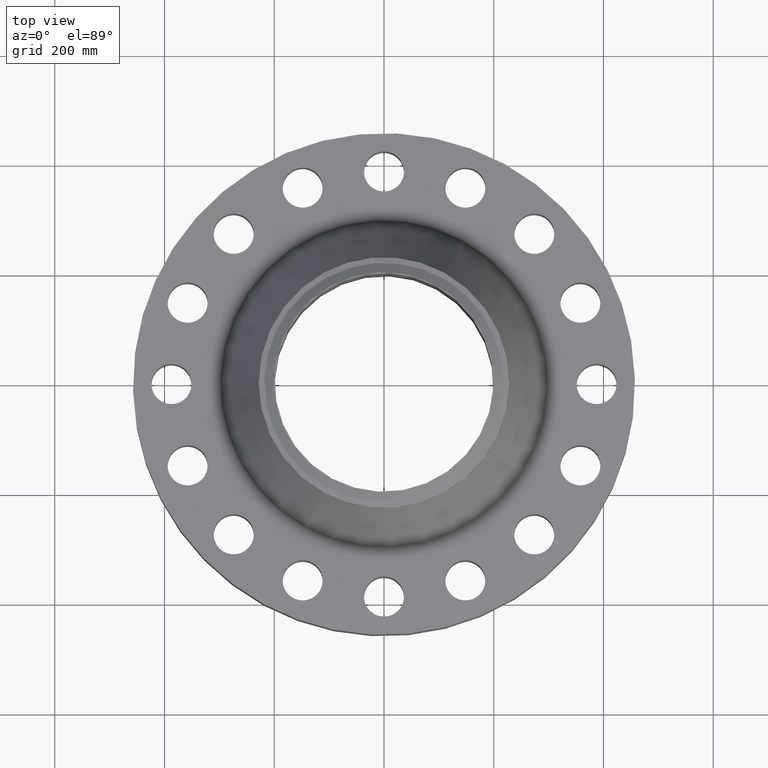
[diagram: clean part render]
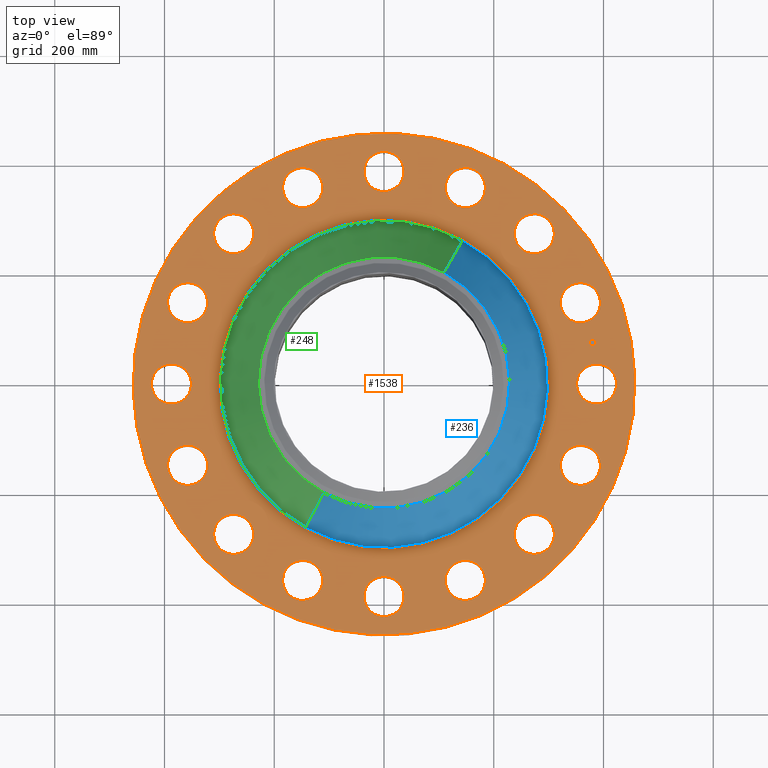
[diagram: same view with three faces highlighted in distinct colors, each labeled with its STEP entity id]
A machine part, top view with three faces highlighted in distinct colors.
Their STEP definitions:

[orange] entity #1538 — the highlighted planar face has unit normal (0, 0, -1).
#65=AXIS2_PLACEMENT_3D('Circle Axis2P3D',#63,#64,$) ;
#82=AXIS2_PLACEMENT_3D('Circle Axis2P3D',#80,#81,$) ;
#115=AXIS2_PLACEMENT_3D('Circle Axis2P3D',#113,#114,$) ;
#139=AXIS2_PLACEMENT_3D('Circle Axis2P3D',#137,#138,$) ;
#156=AXIS2_PLACEMENT_3D('Circle Axis2P3D',#154,#155,$) ;
#191=AXIS2_PLACEMENT_3D('Circle Axis2P3D',#189,#190,$) ;
#819=AXIS2_PLACEMENT_3D('Circle Axis2P3D',#817,#818,$) ;
#831=AXIS2_PLACEMENT_3D('Circle Axis2P3D',#829,#830,$) ;
#862=AXIS2_PLACEMENT_3D('Circle Axis2P3D',#860,#861,$) ;
#874=AXIS2_PLACEMENT_3D('Circle Axis2P3D',#872,#873,$) ;
#905=AXIS2_PLACEMENT_3D('Circle Axis2P3D',#903,#904,$) ;
#917=AXIS2_PLACEMENT_3D('Circle Axis2P3D',#915,#916,$) ;
#948=AXIS2_PLACEMENT_3D('Circle Axis2P3D',#946,#947,$) ;
#960=AXIS2_PLACEMENT_3D('Circle Axis2P3D',#958,#959,$) ;
#991=AXIS2_PLACEMENT_3D('Circle Axis2P3D',#989,#990,$) ;
#1003=AXIS2_PLACEMENT_3D('Circle Axis2P3D',#1001,#1002,$) ;
#1034=AXIS2_PLACEMENT_3D('Circle Axis2P3D',#1032,#1033,$) ;
#1046=AXIS2_PLACEMENT_3D('Circle Axis2P3D',#1044,#1045,$) ;
#1077=AXIS2_PLACEMENT_3D('Circle Axis2P3D',#1075,#1076,$) ;
#1089=AXIS2_PLACEMENT_3D('Circle Axis2P3D',#1087,#1088,$) ;
#1120=AXIS2_PLACEMENT_3D('Circle Axis2P3D',#1118,#1119,$) ;
#1132=AXIS2_PLACEMENT_3D('Circle Axis2P3D',#1130,#1131,$) ;
#1163=AXIS2_PLACEMENT_3D('Circle Axis2P3D',#1161,#1162,$) ;
#1175=AXIS2_PLACEMENT_3D('Circle Axis2P3D',#1173,#1174,$) ;
#1206=AXIS2_PLACEMENT_3D('Circle Axis2P3D',#1204,#1205,$) ;
#1218=AXIS2_PLACEMENT_3D('Circle Axis2P3D',#1216,#1217,$) ;
#1249=AXIS2_PLACEMENT_3D('Circle Axis2P3D',#1247,#1248,$) ;
#1261=AXIS2_PLACEMENT_3D('Circle Axis2P3D',#1259,#1260,$) ;
#1292=AXIS2_PLACEMENT_3D('Circle Axis2P3D',#1290,#1291,$) ;
#1304=AXIS2_PLACEMENT_3D('Circle Axis2P3D',#1302,#1303,$) ;
#1335=AXIS2_PLACEMENT_3D('Circle Axis2P3D',#1333,#1334,$) ;
#1347=AXIS2_PLACEMENT_3D('Circle Axis2P3D',#1345,#1346,$) ;
#1378=AXIS2_PLACEMENT_3D('Circle Axis2P3D',#1376,#1377,$) ;
#1390=AXIS2_PLACEMENT_3D('Circle Axis2P3D',#1388,#1389,$) ;
#1421=AXIS2_PLACEMENT_3D('Circle Axis2P3D',#1419,#1420,$) ;
#1433=AXIS2_PLACEMENT_3D('Circle Axis2P3D',#1431,#1432,$) ;
#1446=AXIS2_PLACEMENT_3D('Plane Axis2P3D',#1443,#1444,#1445) ;
#1522=AXIS2_PLACEMENT_3D('Circle Axis2P3D',#1520,#1521,$) ;
#1531=AXIS2_PLACEMENT_3D('Circle Axis2P3D',#1529,#1530,$) ;
#46=CARTESIAN_POINT('Vertex',(13.9862811109,0.690372775593,6.38000000003)) ;
#60=CARTESIAN_POINT('Vertex',(16.5137188892,-0.690372775593,6.38000000003)) ;
#63=CARTESIAN_POINT('Axis2P3D Location',(15.2500000001,0.,6.38000000003)) ;
#80=CARTESIAN_POINT('Axis2P3D Location',(15.2500000001,0.,6.38000000003)) ;
#110=CARTESIAN_POINT('Vertex',(-8.62965969491,-15.7964861141,6.38000000003)) ;
#113=CARTESIAN_POINT('Axis2P3D Location',(0.,0.,6.38000000003)) ;
#117=CARTESIAN_POINT('Vertex',(8.62965969491,15.7964861141,6.38000000003)) ;
#137=CARTESIAN_POINT('Axis2P3D Location',(0.,0.,6.38000000003)) ;
#154=CARTESIAN_POINT('Axis2P3D Location',(0.,0.,6.38000000003)) ;
#158=CARTESIAN_POINT('Vertex',(5.66931057891,10.3776034053,6.38000000003)) ;
#160=CARTESIAN_POINT('Vertex',(-5.66931057891,-10.3776034053,6.38000000003)) ;
#189=CARTESIAN_POINT('Axis2P3D Location',(0.,0.,6.38000000003)) ;
#807=CARTESIAN_POINT('Vertex',(-13.1858330777,4.71449678438,6.38000000003)) ;
#814=CARTESIAN_POINT('Vertex',(-14.992492664,6.9573479028,6.38000000003)) ;
#817=CARTESIAN_POINT('Axis2P3D Location',(-14.0891628709,5.83592234359,6.38000000003)) ;
#829=CARTESIAN_POINT('Axis2P3D Location',(-14.0891628709,5.83592234359,6.38000000003)) ;
#850=CARTESIAN_POINT('Vertex',(10.3779614883,-9.40162694595,6.38000000003)) ;
#857=CARTESIAN_POINT('Vertex',(11.188795338,-12.1651298803,6.38000000003)) ;
#860=CARTESIAN_POINT('Axis2P3D Location',(10.7833784131,-10.7833784131,6.38000000003)) ;
#872=CARTESIAN_POINT('Axis2P3D Location',(10.7833784131,-10.7833784131,6.38000000003)) ;
#893=CARTESIAN_POINT('Vertex',(-10.3779614883,9.40162694595,6.38000000003)) ;
#900=CARTESIAN_POINT('Vertex',(-11.188795338,12.1651298803,6.38000000003)) ;
#903=CARTESIAN_POINT('Axis2P3D Location',(-10.7833784131,10.7833784131,6.38000000003)) ;
#915=CARTESIAN_POINT('Axis2P3D Location',(-10.7833784131,10.7833784131,6.38000000003)) ;
#936=CARTESIAN_POINT('Vertex',(5.99013933873,-12.657444631,6.38000000003)) ;
#943=CARTESIAN_POINT('Vertex',(5.68170534845,-15.5208811107,6.38000000003)) ;
#946=CARTESIAN_POINT('Axis2P3D Location',(5.83592234359,-14.0891628709,6.38000000003)) ;
#958=CARTESIAN_POINT('Axis2P3D Location',(5.83592234359,-14.0891628709,6.38000000003)) ;
#979=CARTESIAN_POINT('Vertex',(-5.99013933873,12.657444631,6.38000000003)) ;
#986=CARTESIAN_POINT('Vertex',(-5.68170534845,15.5208811107,6.38000000003)) ;
#989=CARTESIAN_POINT('Axis2P3D Location',(-5.83592234359,14.0891628709,6.38000000003)) ;
#1001=CARTESIAN_POINT('Axis2P3D Location',(-5.83592234359,14.0891628709,6.38000000003)) ;
#1022=CARTESIAN_POINT('Vertex',(0.690372775593,-13.9862811109,6.38000000003)) ;
#1029=CARTESIAN_POINT('Vertex',(-0.690372775593,-16.5137188892,6.38000000003)) ;
#1032=CARTESIAN_POINT('Axis2P3D Location',(-1.30413669206E-015,-15.2500000001,6.38000000003)) ;
#1044=CARTESIAN_POINT('Axis2P3D Location',(-1.30413669206E-015,-15.2500000001,6.38000000003)) ;
#1065=CARTESIAN_POINT('Vertex',(-0.690372775593,13.9862811109,6.38000000003)) ;
#1072=CARTESIAN_POINT('Vertex',(0.690372775593,16.5137188892,6.38000000003)) ;
#1075=CARTESIAN_POINT('Axis2P3D Location',(-5.63449676651E-016,15.2500000001,6.38000000003)) ;
#1087=CARTESIAN_POINT('Axis2P3D Location',(-5.63449676651E-016,15.2500000001,6.38000000003)) ;
#1108=CARTESIAN_POINT('Vertex',(-4.71449678438,-13.1858330777,6.38000000003)) ;
#1115=CARTESIAN_POINT('Vertex',(-6.9573479028,-14.992492664,6.38000000003)) ;
#1118=CARTESIAN_POINT('Axis2P3D Location',(-5.83592234359,-14.0891628709,6.38000000003)) ;
#1130=CARTESIAN_POINT('Axis2P3D Location',(-5.83592234359,-14.0891628709,6.38000000003)) ;
#1151=CARTESIAN_POINT('Vertex',(4.71449678438,13.1858330777,6.38000000003)) ;
#1158=CARTESIAN_POINT('Vertex',(6.9573479028,14.992492664,6.38000000003)) ;
#1161=CARTESIAN_POINT('Axis2P3D Location',(5.83592234359,14.0891628709,6.38000000003)) ;
#1173=CARTESIAN_POINT('Axis2P3D Location',(5.83592234359,14.0891628709,6.38000000003)) ;
#1194=CARTESIAN_POINT('Vertex',(-9.40162694595,-10.3779614883,6.38000000003)) ;
#1201=CARTESIAN_POINT('Vertex',(-12.1651298803,-11.188795338,6.38000000003)) ;
#1204=CARTESIAN_POINT('Axis2P3D Location',(-10.7833784131,-10.7833784131,6.38000000003)) ;
#1216=CARTESIAN_POINT('Axis2P3D Location',(-10.7833784131,-10.7833784131,6.38000000003)) ;
#1237=CARTESIAN_POINT('Vertex',(9.40162694595,10.3779614883,6.38000000003)) ;
#1244=CARTESIAN_POINT('Vertex',(12.1651298803,11.188795338,6.38000000003)) ;
#1247=CARTESIAN_POINT('Axis2P3D Location',(10.7833784131,10.7833784131,6.38000000003)) ;
#1259=CARTESIAN_POINT('Axis2P3D Location',(10.7833784131,10.7833784131,6.38000000003)) ;
#1280=CARTESIAN_POINT('Vertex',(-12.657444631,-5.99013933873,6.38000000003)) ;
#1287=CARTESIAN_POINT('Vertex',(-15.5208811107,-5.68170534845,6.38000000003)) ;
#1290=CARTESIAN_POINT('Axis2P3D Location',(-14.0891628709,-5.83592234359,6.38000000003)) ;
#1302=CARTESIAN_POINT('Axis2P3D Location',(-14.0891628709,-5.83592234359,6.38000000003)) ;
#1323=CARTESIAN_POINT('Vertex',(12.657444631,5.99013933873,6.38000000003)) ;
#1330=CARTESIAN_POINT('Vertex',(15.5208811107,5.68170534845,6.38000000003)) ;
#1333=CARTESIAN_POINT('Axis2P3D Location',(14.0891628709,5.83592234359,6.38000000003)) ;
#1345=CARTESIAN_POINT('Axis2P3D Location',(14.0891628709,5.83592234359,6.38000000003)) ;
#1366=CARTESIAN_POINT('Vertex',(-13.9862811109,-0.690372775593,6.38000000003)) ;
#1373=CARTESIAN_POINT('Vertex',(-16.5137188892,0.690372775593,6.38000000003)) ;
#1376=CARTESIAN_POINT('Axis2P3D Location',(-15.2500000001,-1.86758636871E-015,6.38000000003)) ;
#1388=CARTESIAN_POINT('Axis2P3D Location',(-15.2500000001,-1.86758636871E-015,6.38000000003)) ;
#1409=CARTESIAN_POINT('Vertex',(13.1858330777,-4.71449678438,6.38000000003)) ;
#1416=CARTESIAN_POINT('Vertex',(14.992492664,-6.9573479028,6.38000000003)) ;
#1419=CARTESIAN_POINT('Axis2P3D Location',(14.0891628709,-5.83592234359,6.38000000003)) ;
#1431=CARTESIAN_POINT('Axis2P3D Location',(14.0891628709,-5.83592234359,6.38000000003)) ;
#1443=CARTESIAN_POINT('Axis2P3D Location',(0.,18.0000000001,6.38000000003)) ;
#1520=CARTESIAN_POINT('Axis2P3D Location',(14.9569755262,2.97512741076,6.38000000003)) ;
#1524=CARTESIAN_POINT('Vertex',(14.9086906715,3.21787176766,6.38000000003)) ;
#1526=CARTESIAN_POINT('Vertex',(15.0052603809,2.73238305386,6.38000000003)) ;
#1529=CARTESIAN_POINT('Axis2P3D Location',(14.9569755262,2.97512741076,6.38000000003)) ;
#64=DIRECTION('Axis2P3D Direction',(0.,-0.,-0.0393700787402)) ;
#81=DIRECTION('Axis2P3D Direction',(0.,-0.,-0.0393700787402)) ;
#114=DIRECTION('Axis2P3D Direction',(0.,0.,-0.0393700787402)) ;
#138=DIRECTION('Axis2P3D Direction',(0.,0.,-0.0393700787402)) ;
#155=DIRECTION('Axis2P3D Direction',(0.,0.,-0.0393700787402)) ;
#190=DIRECTION('Axis2P3D Direction',(0.,0.,-0.0393700787402)) ;
#818=DIRECTION('Axis2P3D Direction',(0.,0.,-0.0393700787402)) ;
#830=DIRECTION('Axis2P3D Direction',(0.,0.,-0.0393700787402)) ;
#861=DIRECTION('Axis2P3D Direction',(0.,-0.,-0.0393700787402)) ;
#873=DIRECTION('Axis2P3D Direction',(0.,-0.,-0.0393700787402)) ;
#904=DIRECTION('Axis2P3D Direction',(0.,0.,-0.0393700787402)) ;
#916=DIRECTION('Axis2P3D Direction',(0.,0.,-0.0393700787402)) ;
#947=DIRECTION('Axis2P3D Direction',(0.,-0.,-0.0393700787402)) ;
#959=DIRECTION('Axis2P3D Direction',(0.,-0.,-0.0393700787402)) ;
#990=DIRECTION('Axis2P3D Direction',(0.,0.,-0.0393700787402)) ;
#1002=DIRECTION('Axis2P3D Direction',(0.,0.,-0.0393700787402)) ;
#1033=DIRECTION('Axis2P3D Direction',(0.,-0.,-0.0393700787402)) ;
#1045=DIRECTION('Axis2P3D Direction',(0.,-0.,-0.0393700787402)) ;
#1076=DIRECTION('Axis2P3D Direction',(0.,0.,-0.0393700787402)) ;
#1088=DIRECTION('Axis2P3D Direction',(0.,0.,-0.0393700787402)) ;
#1119=DIRECTION('Axis2P3D Direction',(-0.,0.,-0.0393700787402)) ;
#1131=DIRECTION('Axis2P3D Direction',(-0.,0.,-0.0393700787402)) ;
#1162=DIRECTION('Axis2P3D Direction',(0.,0.,-0.0393700787402)) ;
#1174=DIRECTION('Axis2P3D Direction',(0.,0.,-0.0393700787402)) ;
#1205=DIRECTION('Axis2P3D Direction',(-0.,0.,-0.0393700787402)) ;
#1217=DIRECTION('Axis2P3D Direction',(-0.,0.,-0.0393700787402)) ;
#1248=DIRECTION('Axis2P3D Direction',(0.,0.,-0.0393700787402)) ;
#1260=DIRECTION('Axis2P3D Direction',(0.,0.,-0.0393700787402)) ;
#1291=DIRECTION('Axis2P3D Direction',(-0.,0.,-0.0393700787402)) ;
#1303=DIRECTION('Axis2P3D Direction',(-0.,0.,-0.0393700787402)) ;
#1334=DIRECTION('Axis2P3D Direction',(0.,0.,-0.0393700787402)) ;
#1346=DIRECTION('Axis2P3D Direction',(0.,0.,-0.0393700787402)) ;
#1377=DIRECTION('Axis2P3D Direction',(-0.,0.,-0.0393700787402)) ;
#1389=DIRECTION('Axis2P3D Direction',(-0.,0.,-0.0393700787402)) ;
#1420=DIRECTION('Axis2P3D Direction',(0.,-0.,-0.0393700787402)) ;
#1432=DIRECTION('Axis2P3D Direction',(0.,-0.,-0.0393700787402)) ;
#1444=DIRECTION('Axis2P3D Direction',(0.,0.,-0.0393700787402)) ;
#1445=DIRECTION('Axis2P3D XDirection',(0.0393700787402,0.,0.)) ;
#1521=DIRECTION('Axis2P3D Direction',(0.,0.,-0.0393700787402)) ;
#1530=DIRECTION('Axis2P3D Direction',(0.,0.,-0.0393700787402)) ;
#1449=ORIENTED_EDGE('',*,*,#141,.F.) ;
#1450=ORIENTED_EDGE('',*,*,#119,.F.) ;
#1453=ORIENTED_EDGE('',*,*,#67,.T.) ;
#1454=ORIENTED_EDGE('',*,*,#84,.T.) ;
#1457=ORIENTED_EDGE('',*,*,#193,.T.) ;
#1458=ORIENTED_EDGE('',*,*,#162,.T.) ;
#1461=ORIENTED_EDGE('',*,*,#1435,.T.) ;
#1462=ORIENTED_EDGE('',*,*,#1423,.T.) ;
#1465=ORIENTED_EDGE('',*,*,#876,.T.) ;
#1466=ORIENTED_EDGE('',*,*,#864,.T.) ;
#1469=ORIENTED_EDGE('',*,*,#962,.T.) ;
#1470=ORIENTED_EDGE('',*,*,#950,.T.) ;
#1473=ORIENTED_EDGE('',*,*,#1048,.T.) ;
#1474=ORIENTED_EDGE('',*,*,#1036,.T.) ;
#1477=ORIENTED_EDGE('',*,*,#1134,.T.) ;
#1478=ORIENTED_EDGE('',*,*,#1122,.T.) ;
#1481=ORIENTED_EDGE('',*,*,#1220,.T.) ;
#1482=ORIENTED_EDGE('',*,*,#1208,.T.) ;
#1485=ORIENTED_EDGE('',*,*,#1306,.T.) ;
#1486=ORIENTED_EDGE('',*,*,#1294,.T.) ;
#1489=ORIENTED_EDGE('',*,*,#1392,.T.) ;
#1490=ORIENTED_EDGE('',*,*,#1380,.T.) ;
#1493=ORIENTED_EDGE('',*,*,#833,.T.) ;
#1494=ORIENTED_EDGE('',*,*,#821,.T.) ;
#1497=ORIENTED_EDGE('',*,*,#919,.T.) ;
#1498=ORIENTED_EDGE('',*,*,#907,.T.) ;
#1501=ORIENTED_EDGE('',*,*,#1005,.T.) ;
#1502=ORIENTED_EDGE('',*,*,#993,.T.) ;
#1505=ORIENTED_EDGE('',*,*,#1091,.T.) ;
#1506=ORIENTED_EDGE('',*,*,#1079,.T.) ;
#1509=ORIENTED_EDGE('',*,*,#1177,.T.) ;
#1510=ORIENTED_EDGE('',*,*,#1165,.T.) ;
#1513=ORIENTED_EDGE('',*,*,#1263,.T.) ;
#1514=ORIENTED_EDGE('',*,*,#1251,.T.) ;
#1517=ORIENTED_EDGE('',*,*,#1349,.T.) ;
#1518=ORIENTED_EDGE('',*,*,#1337,.T.) ;
#1535=ORIENTED_EDGE('',*,*,#1528,.T.) ;
#1536=ORIENTED_EDGE('',*,*,#1533,.T.) ;
#1455=FACE_BOUND('',#1452,.T.) ;
#1459=FACE_BOUND('',#1456,.T.) ;
#1463=FACE_BOUND('',#1460,.T.) ;
#1467=FACE_BOUND('',#1464,.T.) ;
#1471=FACE_BOUND('',#1468,.T.) ;
#1475=FACE_BOUND('',#1472,.T.) ;
#1479=FACE_BOUND('',#1476,.T.) ;
#1483=FACE_BOUND('',#1480,.T.) ;
#1487=FACE_BOUND('',#1484,.T.) ;
#1491=FACE_BOUND('',#1488,.T.) ;
#1495=FACE_BOUND('',#1492,.T.) ;
#1499=FACE_BOUND('',#1496,.T.) ;
#1503=FACE_BOUND('',#1500,.T.) ;
#1507=FACE_BOUND('',#1504,.T.) ;
#1511=FACE_BOUND('',#1508,.T.) ;
#1515=FACE_BOUND('',#1512,.T.) ;
#1519=FACE_BOUND('',#1516,.T.) ;
#1537=FACE_BOUND('',#1534,.T.) ;
#1538=ADVANCED_FACE('PartBody',(#1451,#1455,#1459,#1463,#1467,#1471,#1475,#1479,#1483,#1487,#1491,#1495,#1499,#1503,#1507,#1511,#1515,#1519,#1537),#1447,.F.) ;
#66=CIRCLE('generated circle',#65,1.44000000001) ;
#83=CIRCLE('generated circle',#82,1.44000000001) ;
#116=CIRCLE('generated circle',#115,18.0000000001) ;
#140=CIRCLE('generated circle',#139,18.0000000001) ;
#157=CIRCLE('generated circle',#156,11.8252160605) ;
#192=CIRCLE('generated circle',#191,11.8252160605) ;
#820=CIRCLE('generated circle',#819,1.44000000001) ;
#832=CIRCLE('generated circle',#831,1.44000000001) ;
#863=CIRCLE('generated circle',#862,1.44000000001) ;
#875=CIRCLE('generated circle',#874,1.44000000001) ;
#906=CIRCLE('generated circle',#905,1.44000000001) ;
#918=CIRCLE('generated circle',#917,1.44000000001) ;
#949=CIRCLE('generated circle',#948,1.44000000001) ;
#961=CIRCLE('generated circle',#960,1.44000000001) ;
#992=CIRCLE('generated circle',#991,1.44000000001) ;
#1004=CIRCLE('generated circle',#1003,1.44000000001) ;
#1035=CIRCLE('generated circle',#1034,1.44000000001) ;
#1047=CIRCLE('generated circle',#1046,1.44000000001) ;
#1078=CIRCLE('generated circle',#1077,1.44000000001) ;
#1090=CIRCLE('generated circle',#1089,1.44000000001) ;
#1121=CIRCLE('generated circle',#1120,1.44000000001) ;
#1133=CIRCLE('generated circle',#1132,1.44000000001) ;
#1164=CIRCLE('generated circle',#1163,1.44000000001) ;
#1176=CIRCLE('generated circle',#1175,1.44000000001) ;
#1207=CIRCLE('generated circle',#1206,1.44000000001) ;
#1219=CIRCLE('generated circle',#1218,1.44000000001) ;
#1250=CIRCLE('generated circle',#1249,1.44000000001) ;
#1262=CIRCLE('generated circle',#1261,1.44000000001) ;
#1293=CIRCLE('generated circle',#1292,1.44000000001) ;
#1305=CIRCLE('generated circle',#1304,1.44000000001) ;
#1336=CIRCLE('generated circle',#1335,1.44000000001) ;
#1348=CIRCLE('generated circle',#1347,1.44000000001) ;
#1379=CIRCLE('generated circle',#1378,1.44000000001) ;
#1391=CIRCLE('generated circle',#1390,1.44000000001) ;
#1422=CIRCLE('generated circle',#1421,1.44000000001) ;
#1434=CIRCLE('generated circle',#1433,1.44000000001) ;
#1523=CIRCLE('generated circle',#1522,0.247500000001) ;
#1532=CIRCLE('generated circle',#1531,0.247500000001) ;
#67=EDGE_CURVE('',#47,#61,#66,.T.) ;
#84=EDGE_CURVE('',#61,#47,#83,.T.) ;
#119=EDGE_CURVE('',#111,#118,#116,.T.) ;
#141=EDGE_CURVE('',#118,#111,#140,.T.) ;
#162=EDGE_CURVE('',#159,#161,#157,.T.) ;
#193=EDGE_CURVE('',#161,#159,#192,.T.) ;
#821=EDGE_CURVE('',#808,#815,#820,.T.) ;
#833=EDGE_CURVE('',#815,#808,#832,.T.) ;
#864=EDGE_CURVE('',#851,#858,#863,.T.) ;
#876=EDGE_CURVE('',#858,#851,#875,.T.) ;
#907=EDGE_CURVE('',#894,#901,#906,.T.) ;
#919=EDGE_CURVE('',#901,#894,#918,.T.) ;
#950=EDGE_CURVE('',#937,#944,#949,.T.) ;
#962=EDGE_CURVE('',#944,#937,#961,.T.) ;
#993=EDGE_CURVE('',#980,#987,#992,.T.) ;
#1005=EDGE_CURVE('',#987,#980,#1004,.T.) ;
#1036=EDGE_CURVE('',#1023,#1030,#1035,.T.) ;
#1048=EDGE_CURVE('',#1030,#1023,#1047,.T.) ;
#1079=EDGE_CURVE('',#1066,#1073,#1078,.T.) ;
#1091=EDGE_CURVE('',#1073,#1066,#1090,.T.) ;
#1122=EDGE_CURVE('',#1109,#1116,#1121,.T.) ;
#1134=EDGE_CURVE('',#1116,#1109,#1133,.T.) ;
#1165=EDGE_CURVE('',#1152,#1159,#1164,.T.) ;
#1177=EDGE_CURVE('',#1159,#1152,#1176,.T.) ;
#1208=EDGE_CURVE('',#1195,#1202,#1207,.T.) ;
#1220=EDGE_CURVE('',#1202,#1195,#1219,.T.) ;
#1251=EDGE_CURVE('',#1238,#1245,#1250,.T.) ;
#1263=EDGE_CURVE('',#1245,#1238,#1262,.T.) ;
#1294=EDGE_CURVE('',#1281,#1288,#1293,.T.) ;
#1306=EDGE_CURVE('',#1288,#1281,#1305,.T.) ;
#1337=EDGE_CURVE('',#1324,#1331,#1336,.T.) ;
#1349=EDGE_CURVE('',#1331,#1324,#1348,.T.) ;
#1380=EDGE_CURVE('',#1367,#1374,#1379,.T.) ;
#1392=EDGE_CURVE('',#1374,#1367,#1391,.T.) ;
#1423=EDGE_CURVE('',#1410,#1417,#1422,.T.) ;
#1435=EDGE_CURVE('',#1417,#1410,#1434,.T.) ;
#1528=EDGE_CURVE('',#1525,#1527,#1523,.T.) ;
#1533=EDGE_CURVE('',#1527,#1525,#1532,.T.) ;
#1448=EDGE_LOOP('',(#1449,#1450)) ;
#1452=EDGE_LOOP('',(#1453,#1454)) ;
#1456=EDGE_LOOP('',(#1457,#1458)) ;
#1460=EDGE_LOOP('',(#1461,#1462)) ;
#1464=EDGE_LOOP('',(#1465,#1466)) ;
#1468=EDGE_LOOP('',(#1469,#1470)) ;
#1472=EDGE_LOOP('',(#1473,#1474)) ;
#1476=EDGE_LOOP('',(#1477,#1478)) ;
#1480=EDGE_LOOP('',(#1481,#1482)) ;
#1484=EDGE_LOOP('',(#1485,#1486)) ;
#1488=EDGE_LOOP('',(#1489,#1490)) ;
#1492=EDGE_LOOP('',(#1493,#1494)) ;
#1496=EDGE_LOOP('',(#1497,#1498)) ;
#1500=EDGE_LOOP('',(#1501,#1502)) ;
#1504=EDGE_LOOP('',(#1505,#1506)) ;
#1508=EDGE_LOOP('',(#1509,#1510)) ;
#1512=EDGE_LOOP('',(#1513,#1514)) ;
#1516=EDGE_LOOP('',(#1517,#1518)) ;
#1534=EDGE_LOOP('',(#1535,#1536)) ;
#1451=FACE_OUTER_BOUND('',#1448,.T.) ;
#1447=PLANE('',#1446) ;
#47=VERTEX_POINT('',#46) ;
#61=VERTEX_POINT('',#60) ;
#111=VERTEX_POINT('',#110) ;
#118=VERTEX_POINT('',#117) ;
#159=VERTEX_POINT('',#158) ;
#161=VERTEX_POINT('',#160) ;
#808=VERTEX_POINT('',#807) ;
#815=VERTEX_POINT('',#814) ;
#851=VERTEX_POINT('',#850) ;
#858=VERTEX_POINT('',#857) ;
#894=VERTEX_POINT('',#893) ;
#901=VERTEX_POINT('',#900) ;
#937=VERTEX_POINT('',#936) ;
#944=VERTEX_POINT('',#943) ;
#980=VERTEX_POINT('',#979) ;
#987=VERTEX_POINT('',#986) ;
#1023=VERTEX_POINT('',#1022) ;
#1030=VERTEX_POINT('',#1029) ;
#1066=VERTEX_POINT('',#1065) ;
#1073=VERTEX_POINT('',#1072) ;
#1109=VERTEX_POINT('',#1108) ;
#1116=VERTEX_POINT('',#1115) ;
#1152=VERTEX_POINT('',#1151) ;
#1159=VERTEX_POINT('',#1158) ;
#1195=VERTEX_POINT('',#1194) ;
#1202=VERTEX_POINT('',#1201) ;
#1238=VERTEX_POINT('',#1237) ;
#1245=VERTEX_POINT('',#1244) ;
#1281=VERTEX_POINT('',#1280) ;
#1288=VERTEX_POINT('',#1287) ;
#1324=VERTEX_POINT('',#1323) ;
#1331=VERTEX_POINT('',#1330) ;
#1367=VERTEX_POINT('',#1366) ;
#1374=VERTEX_POINT('',#1373) ;
#1410=VERTEX_POINT('',#1409) ;
#1417=VERTEX_POINT('',#1416) ;
#1525=VERTEX_POINT('',#1524) ;
#1527=VERTEX_POINT('',#1526) ;

[blue] entity #236 — the highlighted conical surface has half-angle 25.841 deg.
#172=AXIS2_PLACEMENT_3D('Circle Axis2P3D',#170,#171,$) ;
#209=AXIS2_PLACEMENT_3D('Cone Axis2P3D',#206,#207,#208) ;
#220=AXIS2_PLACEMENT_3D('Circle Axis2P3D',#218,#219,$) ;
#167=CARTESIAN_POINT('Vertex',(5.61753220675,10.2828237308,6.44769499567)) ;
#170=CARTESIAN_POINT('Axis2P3D Location',(0.,0.,6.44769499567)) ;
#174=CARTESIAN_POINT('Vertex',(-5.61753220675,-10.2828237308,6.44769499567)) ;
#206=CARTESIAN_POINT('Axis2P3D Location',(0.,0.,12.0582783662)) ;
#211=CARTESIAN_POINT('Line Origine',(4.9661810271,9.09053339391,9.25298668092)) ;
#215=CARTESIAN_POINT('Vertex',(4.31482984746,7.89824305704,12.0582783662)) ;
#218=CARTESIAN_POINT('Axis2P3D Location',(0.,0.,12.0582783662)) ;
#222=CARTESIAN_POINT('Vertex',(-4.31482984746,-7.89824305704,12.0582783662)) ;
#225=CARTESIAN_POINT('Line Origine',(-4.9661810271,-9.09053339391,9.25298668092)) ;
#171=DIRECTION('Axis2P3D Direction',(0.,0.,-0.0393700787402)) ;
#207=DIRECTION('Axis2P3D Direction',(0.,0.,-0.0393700787402)) ;
#208=DIRECTION('Axis2P3D XDirection',(-0.0188750212049,-0.0345504945626,0.)) ;
#212=DIRECTION('Vector Direction',(0.00822715055247,0.015059698071,-0.035433354171)) ;
#219=DIRECTION('Axis2P3D Direction',(0.,0.,-0.0393700787402)) ;
#226=DIRECTION('Vector Direction',(-0.00822715055247,-0.015059698071,-0.035433354171)) ;
#213=VECTOR('Line Direction',#212,0.0393700787402) ;
#227=VECTOR('Line Direction',#226,0.0393700787402) ;
#231=ORIENTED_EDGE('',*,*,#176,.F.) ;
#232=ORIENTED_EDGE('',*,*,#217,.T.) ;
#233=ORIENTED_EDGE('',*,*,#224,.T.) ;
#234=ORIENTED_EDGE('',*,*,#229,.F.) ;
#236=ADVANCED_FACE('PartBody',(#235),#210,.T.) ;
#173=CIRCLE('generated circle',#172,11.717215197) ;
#221=CIRCLE('generated circle',#220,9.00000000004) ;
#210=CONICAL_SURFACE('Cone',#209,9.00000000004,0.451010302891) ;
#176=EDGE_CURVE('',#168,#175,#173,.T.) ;
#217=EDGE_CURVE('',#168,#216,#214,.F.) ;
#224=EDGE_CURVE('',#216,#223,#221,.T.) ;
#229=EDGE_CURVE('',#175,#223,#228,.F.) ;
#230=EDGE_LOOP('',(#231,#232,#233,#234)) ;
#235=FACE_OUTER_BOUND('',#230,.T.) ;
#214=LINE('Line',#211,#213) ;
#228=LINE('Line',#225,#227) ;
#168=VERTEX_POINT('',#167) ;
#175=VERTEX_POINT('',#174) ;
#216=VERTEX_POINT('',#215) ;
#223=VERTEX_POINT('',#222) ;

[green] entity #248 — the highlighted conical surface has half-angle 25.841 deg.
#196=AXIS2_PLACEMENT_3D('Circle Axis2P3D',#194,#195,$) ;
#209=AXIS2_PLACEMENT_3D('Cone Axis2P3D',#206,#207,#208) ;
#239=AXIS2_PLACEMENT_3D('Circle Axis2P3D',#237,#238,$) ;
#167=CARTESIAN_POINT('Vertex',(5.61753220675,10.2828237308,6.44769499567)) ;
#174=CARTESIAN_POINT('Vertex',(-5.61753220675,-10.2828237308,6.44769499567)) ;
#194=CARTESIAN_POINT('Axis2P3D Location',(0.,0.,6.44769499567)) ;
#206=CARTESIAN_POINT('Axis2P3D Location',(0.,0.,12.0582783662)) ;
#211=CARTESIAN_POINT('Line Origine',(4.9661810271,9.09053339391,9.25298668092)) ;
#215=CARTESIAN_POINT('Vertex',(4.31482984746,7.89824305704,12.0582783662)) ;
#222=CARTESIAN_POINT('Vertex',(-4.31482984746,-7.89824305704,12.0582783662)) ;
#225=CARTESIAN_POINT('Line Origine',(-4.9661810271,-9.09053339391,9.25298668092)) ;
#237=CARTESIAN_POINT('Axis2P3D Location',(0.,0.,12.0582783662)) ;
#195=DIRECTION('Axis2P3D Direction',(0.,0.,-0.0393700787402)) ;
#207=DIRECTION('Axis2P3D Direction',(0.,0.,-0.0393700787402)) ;
#208=DIRECTION('Axis2P3D XDirection',(-0.0188750212049,-0.0345504945626,0.)) ;
#212=DIRECTION('Vector Direction',(0.00822715055247,0.015059698071,-0.035433354171)) ;
#226=DIRECTION('Vector Direction',(-0.00822715055247,-0.015059698071,-0.035433354171)) ;
#238=DIRECTION('Axis2P3D Direction',(0.,0.,-0.0393700787402)) ;
#213=VECTOR('Line Direction',#212,0.0393700787402) ;
#227=VECTOR('Line Direction',#226,0.0393700787402) ;
#243=ORIENTED_EDGE('',*,*,#198,.F.) ;
#244=ORIENTED_EDGE('',*,*,#229,.T.) ;
#245=ORIENTED_EDGE('',*,*,#241,.T.) ;
#246=ORIENTED_EDGE('',*,*,#217,.F.) ;
#248=ADVANCED_FACE('PartBody',(#247),#210,.T.) ;
#197=CIRCLE('generated circle',#196,11.717215197) ;
#240=CIRCLE('generated circle',#239,9.00000000004) ;
#210=CONICAL_SURFACE('Cone',#209,9.00000000004,0.451010302891) ;
#198=EDGE_CURVE('',#175,#168,#197,.T.) ;
#217=EDGE_CURVE('',#168,#216,#214,.F.) ;
#229=EDGE_CURVE('',#175,#223,#228,.F.) ;
#241=EDGE_CURVE('',#223,#216,#240,.T.) ;
#242=EDGE_LOOP('',(#243,#244,#245,#246)) ;
#247=FACE_OUTER_BOUND('',#242,.T.) ;
#214=LINE('Line',#211,#213) ;
#228=LINE('Line',#225,#227) ;
#168=VERTEX_POINT('',#167) ;
#175=VERTEX_POINT('',#174) ;
#216=VERTEX_POINT('',#215) ;
#223=VERTEX_POINT('',#222) ;